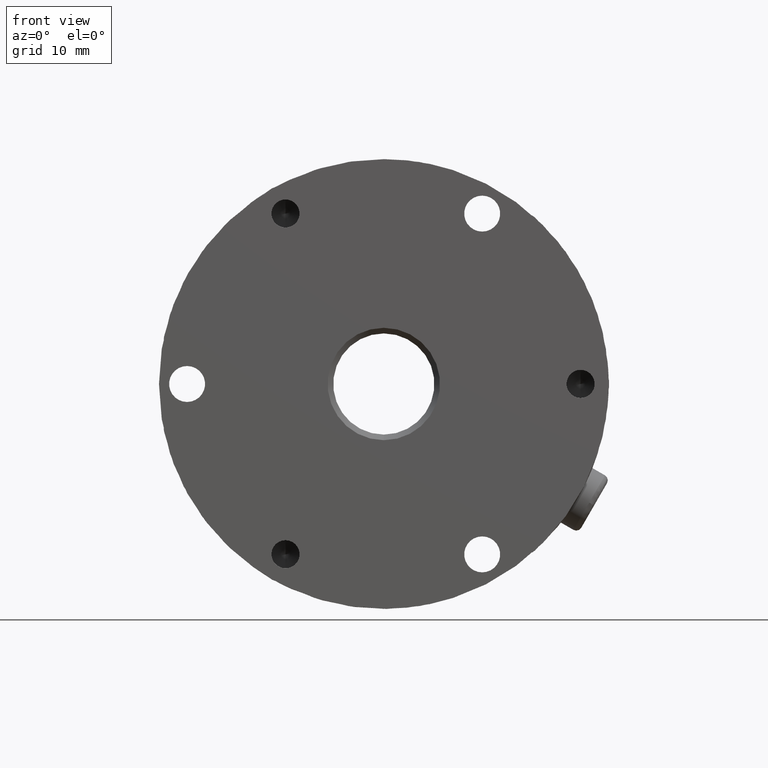
[diagram: clean part render]
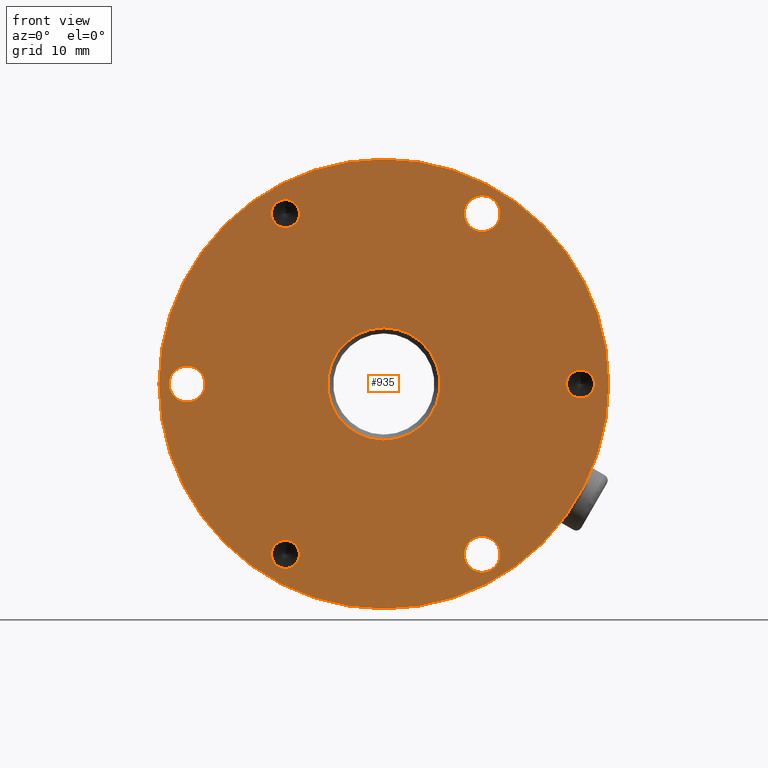
[diagram: same view with one face highlighted and labeled with its STEP entity id]
A machine part, front view. The second image highlights one B-rep face of the part: STEP entity #935.
In plain terms, the highlighted planar face has unit normal (0, 1, 0).
Its self-contained STEP definition (entity closure, byte-faithful):
#5 = EDGE_CURVE ( 'NONE', #1920, #8695, #5160, .T. ) ;
#104 = AXIS2_PLACEMENT_3D ( 'NONE', #7146, #5764, #5896 ) ;
#217 = AXIS2_PLACEMENT_3D ( 'NONE', #1780, #3369, #4710 ) ;
#290 = ORIENTED_EDGE ( 'NONE', *, *, #6720, .T. ) ;
#320 = DIRECTION ( 'NONE',  ( 0.0000000000000000000, -6.123233995736565123E-17, 1.000000000000000000 ) ) ;
#431 = CARTESIAN_POINT ( 'NONE',  ( -8.898990157379852661, -87.13216099891346289, 15.45378232518348227 ) ) ;
#616 = DIRECTION ( 'NONE',  ( 0.0000000000000000000, 0.0000000000000000000, -1.000000000000000000 ) ) ;
#629 = DIRECTION ( 'NONE',  ( 0.0000000000000000000, 0.0000000000000000000, 1.000000000000000000 ) ) ;
#668 = DIRECTION ( 'NONE',  ( -0.0000000000000000000, 1.000000000000000000, 0.0000000000000000000 ) ) ;
#774 = AXIS2_PLACEMENT_3D ( 'NONE', #3085, #2995, #4530 ) ;
#898 = DIRECTION ( 'NONE',  ( -1.963197694344632333E-17, -1.000000000000000000, -6.123233995736720430E-17 ) ) ;
#935 = ADVANCED_FACE ( 'NONE', ( #8072, #5936, #6155, #5707, #3799, #944, #7948, #1168 ), #7333, .F. ) ;
#944 = FACE_BOUND ( 'NONE', #5271, .T. ) ;
#1002 = CARTESIAN_POINT ( 'NONE',  ( -17.64899015737975674, -87.13216099891346289, 1.898337758955632726 ) ) ;
#1020 = EDGE_LOOP ( 'NONE', ( #3586, #1891 ) ) ;
#1070 = DIRECTION ( 'NONE',  ( 1.963197694344378727E-17, 1.000000000000000000, 6.123233995736912715E-17 ) ) ;
#1089 = AXIS2_PLACEMENT_3D ( 'NONE', #431, #8309, #3352 ) ;
#1146 = VERTEX_POINT ( 'NONE', #4163 ) ;
#1168 = FACE_BOUND ( 'NONE', #7283, .T. ) ;
#1218 = CIRCLE ( 'NONE', #774, 1.600000000000002531 ) ;
#1362 = CIRCLE ( 'NONE', #217, 1.249999999999988676 ) ;
#1438 = AXIS2_PLACEMENT_3D ( 'NONE', #6670, #3988, #320 ) ;
#1461 = CARTESIAN_POINT ( 'NONE',  ( -8.898990157379639498, -87.13216099891346289, -13.60710680727203759 ) ) ;
#1472 = VERTEX_POINT ( 'NONE', #8968 ) ;
#1742 = CARTESIAN_POINT ( 'NONE',  ( -17.64899015737975674, -87.13216099891346289, 0.2983377589556323040 ) ) ;
#1780 = CARTESIAN_POINT ( 'NONE',  ( 17.35100984262030721, -87.13216099891346289, 0.2983377589560512466 ) ) ;
#1890 = DIRECTION ( 'NONE',  ( -1.963197694344632333E-17, -1.000000000000000000, -6.123233995736720430E-17 ) ) ;
#1891 = ORIENTED_EDGE ( 'NONE', *, *, #3155, .T. ) ;
#1913 = DIRECTION ( 'NONE',  ( -1.963197694344632333E-17, -1.000000000000000000, -6.123233995736720430E-17 ) ) ;
#1920 = VERTEX_POINT ( 'NONE', #1461 ) ;
#1926 = CARTESIAN_POINT ( 'NONE',  ( -17.64899015737975674, -87.13216099891346289, 0.2983377589556323040 ) ) ;
#2063 = AXIS2_PLACEMENT_3D ( 'NONE', #5524, #1913, #7115 ) ;
#2174 = VERTEX_POINT ( 'NONE', #2520 ) ;
#2235 = EDGE_LOOP ( 'NONE', ( #3034, #4537 ) ) ;
#2339 = VERTEX_POINT ( 'NONE', #3040 ) ;
#2368 = EDGE_LOOP ( 'NONE', ( #8052, #6022 ) ) ;
#2384 = CIRCLE ( 'NONE', #4211, 1.600000000000000311 ) ;
#2430 = DIRECTION ( 'NONE',  ( -1.963197694344632333E-17, -1.000000000000000000, -6.123233995736720430E-17 ) ) ;
#2502 = CIRCLE ( 'NONE', #5278, 1.600000000000000755 ) ;
#2518 = ORIENTED_EDGE ( 'NONE', *, *, #7717, .F. ) ;
#2520 = CARTESIAN_POINT ( 'NONE',  ( -0.1489901573797482170, -87.13216099891346289, -19.70166224104421460 ) ) ;
#2559 = EDGE_CURVE ( 'NONE', #6317, #8417, #8733, .T. ) ;
#2611 = EDGE_CURVE ( 'NONE', #6215, #6862, #8074, .T. ) ;
#2682 = DIRECTION ( 'NONE',  ( 0.0000000000000000000, 0.0000000000000000000, 1.000000000000000000 ) ) ;
#2878 = AXIS2_PLACEMENT_3D ( 'NONE', #1742, #6656, #5324 ) ;
#2893 = EDGE_CURVE ( 'NONE', #8695, #1920, #4897, .T. ) ;
#2909 = EDGE_CURVE ( 'NONE', #4150, #2174, #7590, .T. ) ;
#2930 = CARTESIAN_POINT ( 'NONE',  ( -0.1489901573797480228, -87.13216099897636013, 0.2983377589557971721 ) ) ;
#2931 = ORIENTED_EDGE ( 'NONE', *, *, #3010, .T. ) ;
#2995 = DIRECTION ( 'NONE',  ( 1.963197694344378727E-17, 1.000000000000000000, 6.123233995736912715E-17 ) ) ;
#3010 = EDGE_CURVE ( 'NONE', #4586, #6698, #7008, .T. ) ;
#3034 = ORIENTED_EDGE ( 'NONE', *, *, #8576, .T. ) ;
#3040 = CARTESIAN_POINT ( 'NONE',  ( -8.898990157379852661, -87.13216099891346289, 16.70378232518347161 ) ) ;
#3085 = CARTESIAN_POINT ( 'NONE',  ( 8.601009842620454648, -87.13216099891326394, -14.85710680727183153 ) ) ;
#3155 = EDGE_CURVE ( 'NONE', #8114, #8683, #7361, .T. ) ;
#3158 = EDGE_CURVE ( 'NONE', #7325, #1146, #2502, .T. ) ;
#3337 = DIRECTION ( 'NONE',  ( 1.963197694344378727E-17, 1.000000000000000000, 6.123233995736912715E-17 ) ) ;
#3352 = DIRECTION ( 'NONE',  ( 0.0000000000000000000, 0.0000000000000000000, -1.000000000000000000 ) ) ;
#3369 = DIRECTION ( 'NONE',  ( -1.963197694344632333E-17, -1.000000000000000000, -6.123233995736720430E-17 ) ) ;
#3393 = EDGE_LOOP ( 'NONE', ( #290, #2931 ) ) ;
#3568 = CARTESIAN_POINT ( 'NONE',  ( 8.601009842620131352, -87.13216099891346289, 13.85378232518358566 ) ) ;
#3586 = ORIENTED_EDGE ( 'NONE', *, *, #6561, .T. ) ;
#3596 = ORIENTED_EDGE ( 'NONE', *, *, #8812, .F. ) ;
#3755 = AXIS2_PLACEMENT_3D ( 'NONE', #2930, #668, #7167 ) ;
#3799 = FACE_BOUND ( 'NONE', #3393, .T. ) ;
#3835 = CARTESIAN_POINT ( 'NONE',  ( 17.35100984262030721, -87.13216099891346289, -0.9516622410439374846 ) ) ;
#3850 = ORIENTED_EDGE ( 'NONE', *, *, #2909, .F. ) ;
#3879 = CARTESIAN_POINT ( 'NONE',  ( 8.601009842620131352, -87.13216099891346289, 15.45378232518358708 ) ) ;
#3988 = DIRECTION ( 'NONE',  ( 1.963197694344906894E-17, 1.000000000000000000, 6.123233995736565123E-17 ) ) ;
#4023 = EDGE_LOOP ( 'NONE', ( #6650, #3850 ) ) ;
#4059 = CIRCLE ( 'NONE', #3755, 4.999999999927537964 ) ;
#4077 = CIRCLE ( 'NONE', #8277, 20.00000000000001066 ) ;
#4150 = VERTEX_POINT ( 'NONE', #4338 ) ;
#4163 = CARTESIAN_POINT ( 'NONE',  ( 8.601009842620131352, -87.13216099891346289, 17.05378232518358672 ) ) ;
#4169 = DIRECTION ( 'NONE',  ( 1.963197694344378727E-17, 1.000000000000000000, 6.123233995736912715E-17 ) ) ;
#4188 = CARTESIAN_POINT ( 'NONE',  ( -0.1489901573797473844, -87.13216099897636013, 5.298337758883334914 ) ) ;
#4211 = AXIS2_PLACEMENT_3D ( 'NONE', #1926, #3337, #6951 ) ;
#4338 = CARTESIAN_POINT ( 'NONE',  ( -0.1489901573797456358, -87.13216099891346289, 20.29833775895580672 ) ) ;
#4530 = DIRECTION ( 'NONE',  ( 0.0000000000000000000, 0.0000000000000000000, 1.000000000000000000 ) ) ;
#4537 = ORIENTED_EDGE ( 'NONE', *, *, #2559, .T. ) ;
#4557 = CARTESIAN_POINT ( 'NONE',  ( -8.898990157379639498, -87.13216099891346289, -16.10710680727201094 ) ) ;
#4586 = VERTEX_POINT ( 'NONE', #4188 ) ;
#4710 = DIRECTION ( 'NONE',  ( 0.0000000000000000000, 0.0000000000000000000, -1.000000000000000000 ) ) ;
#4715 = AXIS2_PLACEMENT_3D ( 'NONE', #9285, #4981, #629 ) ;
#4867 = ORIENTED_EDGE ( 'NONE', *, *, #2611, .F. ) ;
#4879 = CARTESIAN_POINT ( 'NONE',  ( -8.898990157379639498, -87.13216099891346289, -14.85710680727202515 ) ) ;
#4897 = CIRCLE ( 'NONE', #2063, 1.249999999999987121 ) ;
#4981 = DIRECTION ( 'NONE',  ( 1.963197694344378727E-17, 1.000000000000000000, 6.123233995736912715E-17 ) ) ;
#5160 = CIRCLE ( 'NONE', #8409, 1.249999999999987121 ) ;
#5247 = AXIS2_PLACEMENT_3D ( 'NONE', #6834, #1070, #2682 ) ;
#5271 = EDGE_LOOP ( 'NONE', ( #3596, #8247 ) ) ;
#5278 = AXIS2_PLACEMENT_3D ( 'NONE', #3879, #6015, #6070 ) ;
#5285 = CARTESIAN_POINT ( 'NONE',  ( -8.898990157379852661, -87.13216099891346289, 15.45378232518348227 ) ) ;
#5324 = DIRECTION ( 'NONE',  ( 0.0000000000000000000, 0.0000000000000000000, 1.000000000000000000 ) ) ;
#5446 = EDGE_LOOP ( 'NONE', ( #2518, #4867 ) ) ;
#5524 = CARTESIAN_POINT ( 'NONE',  ( -8.898990157379639498, -87.13216099891346289, -14.85710680727202515 ) ) ;
#5707 = FACE_BOUND ( 'NONE', #2368, .T. ) ;
#5764 = DIRECTION ( 'NONE',  ( -0.0000000000000000000, 1.000000000000000000, 0.0000000000000000000 ) ) ;
#5832 = CIRCLE ( 'NONE', #9090, 1.249999999999988898 ) ;
#5896 = DIRECTION ( 'NONE',  ( 0.0000000000000000000, 0.0000000000000000000, -1.000000000000000000 ) ) ;
#5936 = FACE_BOUND ( 'NONE', #2235, .T. ) ;
#5997 = CARTESIAN_POINT ( 'NONE',  ( -0.1489901573797482170, -87.13216099891346289, 0.2983377589557971166 ) ) ;
#6015 = DIRECTION ( 'NONE',  ( 1.963197694344378727E-17, 1.000000000000000000, 6.123233995736912715E-17 ) ) ;
#6022 = ORIENTED_EDGE ( 'NONE', *, *, #3158, .T. ) ;
#6070 = DIRECTION ( 'NONE',  ( 0.0000000000000000000, 0.0000000000000000000, 1.000000000000000000 ) ) ;
#6120 = AXIS2_PLACEMENT_3D ( 'NONE', #5997, #6303, #616 ) ;
#6155 = FACE_BOUND ( 'NONE', #1020, .T. ) ;
#6215 = VERTEX_POINT ( 'NONE', #6370 ) ;
#6277 = CARTESIAN_POINT ( 'NONE',  ( -0.1489901573797480228, -87.13216099897636013, -4.701662240971741014 ) ) ;
#6303 = DIRECTION ( 'NONE',  ( 1.963197694344378727E-17, 1.000000000000000000, 6.123233995736912715E-17 ) ) ;
#6317 = VERTEX_POINT ( 'NONE', #8574 ) ;
#6370 = CARTESIAN_POINT ( 'NONE',  ( 17.35100984262030721, -87.13216099891346289, 1.548337758956040089 ) ) ;
#6407 = ORIENTED_EDGE ( 'NONE', *, *, #5, .F. ) ;
#6479 = EDGE_CURVE ( 'NONE', #2339, #1472, #5832, .T. ) ;
#6510 = EDGE_CURVE ( 'NONE', #1146, #7325, #9236, .T. ) ;
#6561 = EDGE_CURVE ( 'NONE', #8683, #8114, #2384, .T. ) ;
#6634 = CARTESIAN_POINT ( 'NONE',  ( 17.35100984262030721, -87.13216099891346289, 0.2983377589560512466 ) ) ;
#6650 = ORIENTED_EDGE ( 'NONE', *, *, #7803, .F. ) ;
#6656 = DIRECTION ( 'NONE',  ( 1.963197694344378727E-17, 1.000000000000000000, 6.123233995736912715E-17 ) ) ;
#6670 = CARTESIAN_POINT ( 'NONE',  ( -0.1489901573797481893, -87.13216099891346289, 0.2983377589557971166 ) ) ;
#6698 = VERTEX_POINT ( 'NONE', #6277 ) ;
#6720 = EDGE_CURVE ( 'NONE', #6698, #4586, #4059, .T. ) ;
#6834 = CARTESIAN_POINT ( 'NONE',  ( 8.601009842620131352, -87.13216099891346289, 15.45378232518358708 ) ) ;
#6862 = VERTEX_POINT ( 'NONE', #3835 ) ;
#6951 = DIRECTION ( 'NONE',  ( 0.0000000000000000000, 0.0000000000000000000, 1.000000000000000000 ) ) ;
#6953 = CIRCLE ( 'NONE', #1089, 1.249999999999988898 ) ;
#7001 = DIRECTION ( 'NONE',  ( 0.0000000000000000000, 0.0000000000000000000, -1.000000000000000000 ) ) ;
#7008 = CIRCLE ( 'NONE', #104, 4.999999999927537964 ) ;
#7039 = DIRECTION ( 'NONE',  ( 0.0000000000000000000, 0.0000000000000000000, -1.000000000000000000 ) ) ;
#7073 = CARTESIAN_POINT ( 'NONE',  ( -0.1489901573797482170, -87.13216099891346289, 0.2983377589557971166 ) ) ;
#7095 = CARTESIAN_POINT ( 'NONE',  ( 8.601009842620454648, -87.13216099891326394, -13.25710680727182833 ) ) ;
#7115 = DIRECTION ( 'NONE',  ( 0.0000000000000000000, 0.0000000000000000000, -1.000000000000000000 ) ) ;
#7146 = CARTESIAN_POINT ( 'NONE',  ( -0.1489901573797480228, -87.13216099897636013, 0.2983377589557971721 ) ) ;
#7167 = DIRECTION ( 'NONE',  ( 0.0000000000000000000, 0.0000000000000000000, -1.000000000000000000 ) ) ;
#7283 = EDGE_LOOP ( 'NONE', ( #7423, #6407 ) ) ;
#7325 = VERTEX_POINT ( 'NONE', #3568 ) ;
#7333 = PLANE ( 'NONE',  #1438 ) ;
#7361 = CIRCLE ( 'NONE', #2878, 1.600000000000000311 ) ;
#7423 = ORIENTED_EDGE ( 'NONE', *, *, #2893, .F. ) ;
#7590 = CIRCLE ( 'NONE', #6120, 20.00000000000001066 ) ;
#7717 = EDGE_CURVE ( 'NONE', #6862, #6215, #1362, .T. ) ;
#7803 = EDGE_CURVE ( 'NONE', #2174, #4150, #4077, .T. ) ;
#7948 = FACE_BOUND ( 'NONE', #5446, .T. ) ;
#8052 = ORIENTED_EDGE ( 'NONE', *, *, #6510, .T. ) ;
#8072 = FACE_OUTER_BOUND ( 'NONE', #4023, .T. ) ;
#8074 = CIRCLE ( 'NONE', #9055, 1.249999999999988676 ) ;
#8080 = CARTESIAN_POINT ( 'NONE',  ( -17.64899015737975674, -87.13216099891346289, -1.301662241044367896 ) ) ;
#8114 = VERTEX_POINT ( 'NONE', #8080 ) ;
#8133 = DIRECTION ( 'NONE',  ( 0.0000000000000000000, 0.0000000000000000000, -1.000000000000000000 ) ) ;
#8148 = DIRECTION ( 'NONE',  ( 0.0000000000000000000, 0.0000000000000000000, -1.000000000000000000 ) ) ;
#8247 = ORIENTED_EDGE ( 'NONE', *, *, #6479, .F. ) ;
#8277 = AXIS2_PLACEMENT_3D ( 'NONE', #7073, #4169, #7039 ) ;
#8309 = DIRECTION ( 'NONE',  ( -1.963197694344632333E-17, -1.000000000000000000, -6.123233995736720430E-17 ) ) ;
#8409 = AXIS2_PLACEMENT_3D ( 'NONE', #4879, #1890, #7001 ) ;
#8417 = VERTEX_POINT ( 'NONE', #7095 ) ;
#8574 = CARTESIAN_POINT ( 'NONE',  ( 8.601009842620454648, -87.13216099891326394, -16.45710680727183117 ) ) ;
#8576 = EDGE_CURVE ( 'NONE', #8417, #6317, #1218, .T. ) ;
#8683 = VERTEX_POINT ( 'NONE', #1002 ) ;
#8695 = VERTEX_POINT ( 'NONE', #4557 ) ;
#8733 = CIRCLE ( 'NONE', #4715, 1.600000000000002531 ) ;
#8812 = EDGE_CURVE ( 'NONE', #1472, #2339, #6953, .T. ) ;
#8968 = CARTESIAN_POINT ( 'NONE',  ( -8.898990157379852661, -87.13216099891346289, 14.20378232518349293 ) ) ;
#9055 = AXIS2_PLACEMENT_3D ( 'NONE', #6634, #898, #8133 ) ;
#9090 = AXIS2_PLACEMENT_3D ( 'NONE', #5285, #2430, #8148 ) ;
#9236 = CIRCLE ( 'NONE', #5247, 1.600000000000000755 ) ;
#9285 = CARTESIAN_POINT ( 'NONE',  ( 8.601009842620454648, -87.13216099891326394, -14.85710680727183153 ) ) ;